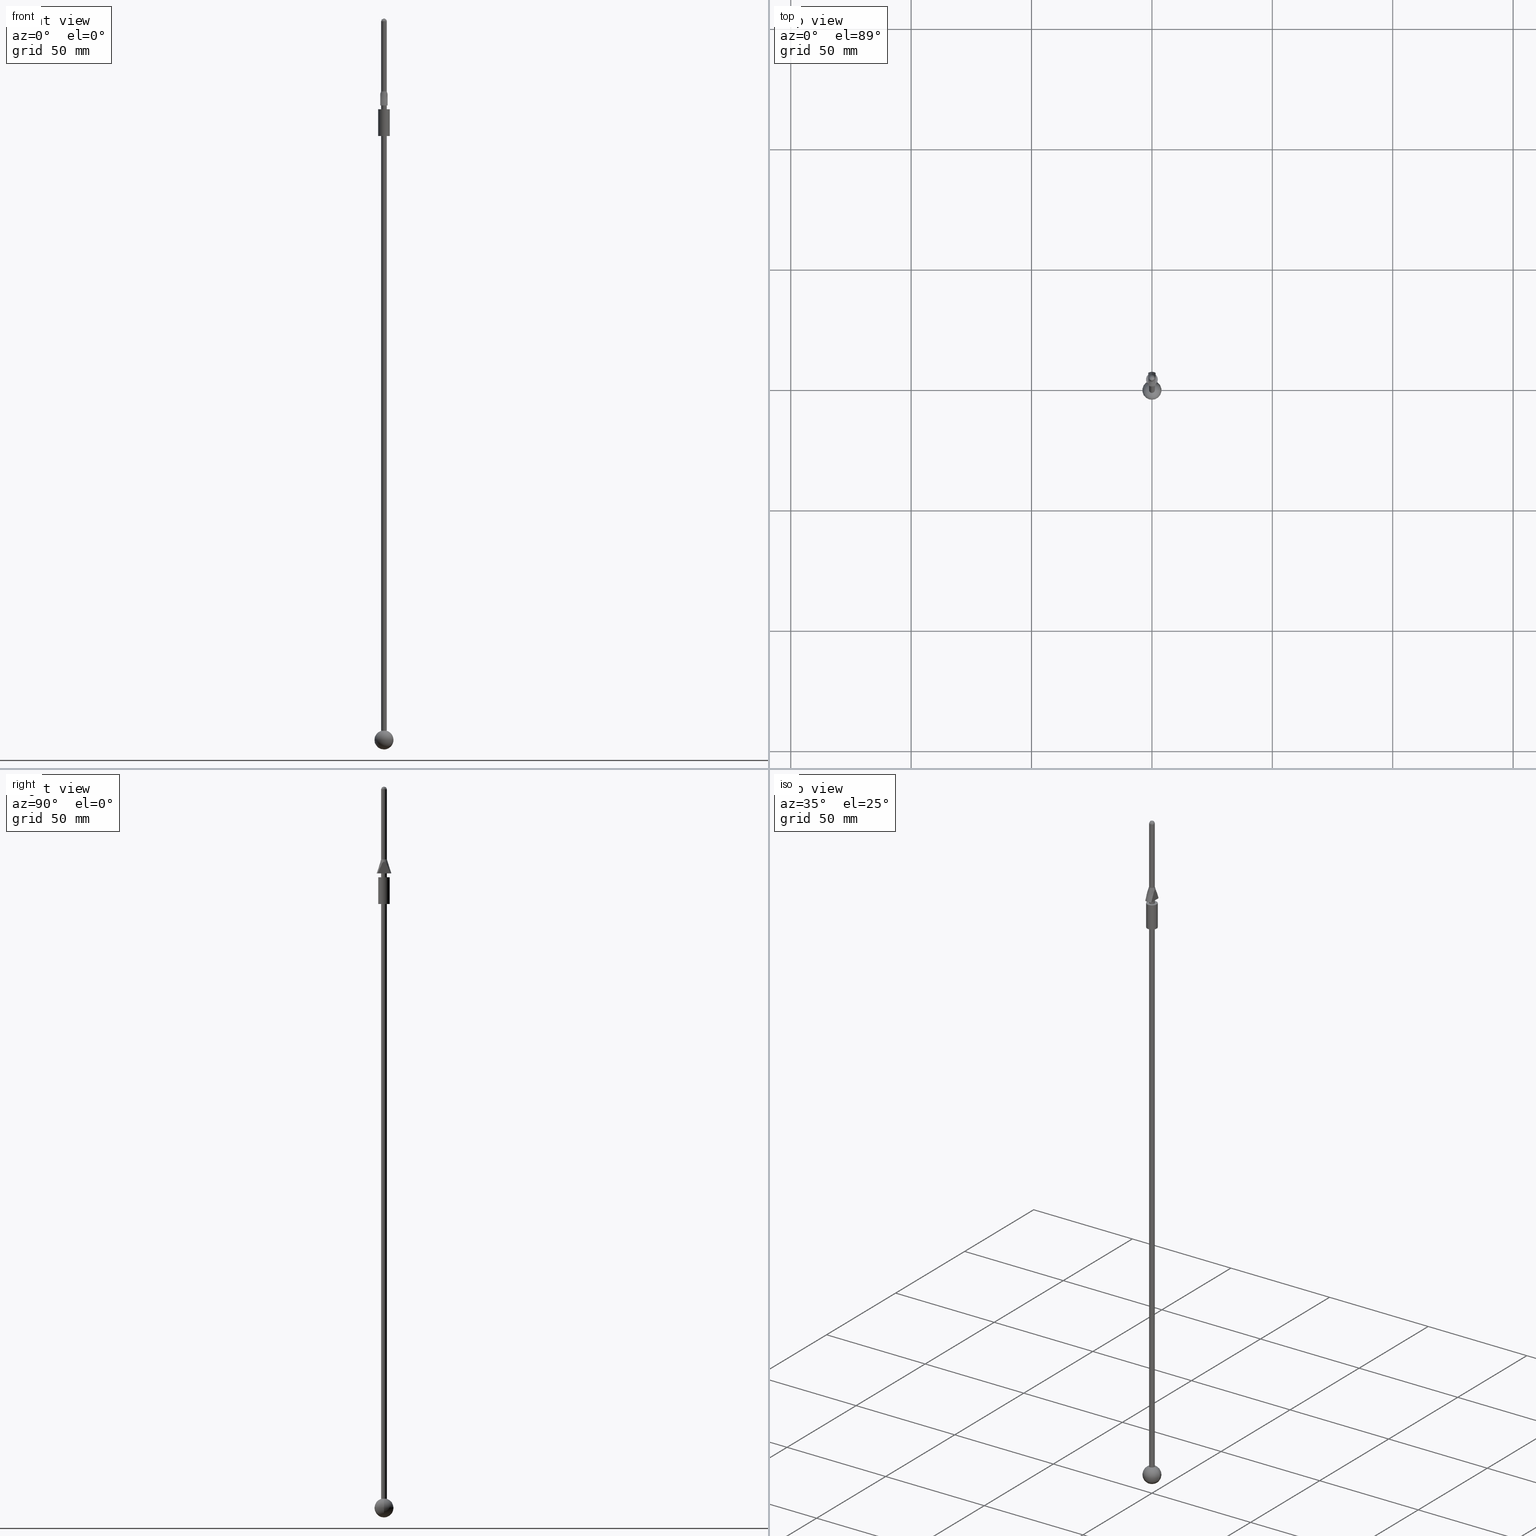
[diagram: canonical four-view strip — front | top / right | iso, engineering-drawing reading convention]
A machine part, canonical four-view strip (front | top / right | iso — engineering-drawing reading convention). The complete STEP part file that produces these views, byte-faithful:
ISO-10303-21;
HEADER;
/* Generated by software containing ST-Developer
 * from STEP Tools, Inc. (www.steptools.com) 
 */

FILE_DESCRIPTION(
/* description */ ('Polyurethane Lanyard'),
/* implementation_level */ '2;1');

FILE_NAME(
/* name */ 'G:\\engineer\\1-3D\\STEP\\V20207.stp',
/* time_stamp */ '2014-01-13T08:24:23-05:00',
/* author */ ('areid'),
/* organization */ (''),
/* preprocessor_version */ 'ST-DEVELOPER v15.2',
/* originating_system */ 'Autodesk Inventor 2014',
/* authorisation */ '');

FILE_SCHEMA (('AUTOMOTIVE_DESIGN { 1 0 10303 214 3 1 1 }'));
ENDSEC;

DATA;
#10=SHAPE_REPRESENTATION_RELATIONSHIP('SRR','None',#324,#11);
#11=ADVANCED_BREP_SHAPE_REPRESENTATION($,(#161),#312);
#12=STYLED_ITEM($,(#332),#161);
#13=SPHERICAL_SURFACE($,#185,0.15625);
#14=(
BOUNDED_SURFACE()
B_SPLINE_SURFACE(2,2,((#274,#275,#276,#277,#278,#279,#280,#281,#282),(#283,
#284,#285,#286,#287,#288,#289,#290,#291),(#292,#293,#294,#295,#296,#297,
#298,#299,#300)),.UNSPECIFIED.,.F.,.T.,.F.)
B_SPLINE_SURFACE_WITH_KNOTS((3,3),(3,2,2,2,3),(-1.5707963267949,0.),(-3.14159265358979,
-1.5707963267949,0.,1.5707963267949,3.14159265358979),.UNSPECIFIED.)
GEOMETRIC_REPRESENTATION_ITEM()
RATIONAL_B_SPLINE_SURFACE(((1.,0.707106781186548,1.,0.707106781186548,1.,
0.707106781186548,1.,0.707106781186548,1.),(0.707106781186547,0.5,0.707106781186547,
0.5,0.707106781186547,0.5,0.707106781186547,0.5,0.707106781186547),(1.,
0.707106781186548,1.,0.707106781186548,1.,0.707106781186548,1.,0.707106781186548,
1.)))
REPRESENTATION_ITEM($)
SURFACE()
);
#15=CYLINDRICAL_SURFACE($,#174,0.095);
#16=CYLINDRICAL_SURFACE($,#178,0.046875);
#17=CYLINDRICAL_SURFACE($,#180,0.046875);
#18=CYLINDRICAL_SURFACE($,#183,0.046875);
#19=FACE_BOUND($,#55,.T.);
#20=FACE_BOUND($,#57,.T.);
#21=FACE_BOUND($,#59,.T.);
#22=FACE_BOUND($,#61,.T.);
#23=FACE_BOUND($,#62,.T.);
#24=FACE_BOUND($,#63,.T.);
#25=FACE_BOUND($,#65,.T.);
#26=FACE_BOUND($,#67,.T.);
#27=FACE_BOUND($,#70,.T.);
#28=FACE_BOUND($,#72,.T.);
#29=CIRCLE($,#166,0.046875);
#30=CIRCLE($,#167,0.12);
#31=CIRCLE($,#168,0.12);
#32=CIRCLE($,#170,0.046875);
#33=CIRCLE($,#172,0.095);
#34=CIRCLE($,#173,0.046875);
#35=CIRCLE($,#175,0.095);
#36=CIRCLE($,#177,0.046875);
#37=CIRCLE($,#179,0.046875);
#38=CIRCLE($,#181,0.046875);
#39=CIRCLE($,#182,0.001875);
#40=CONICAL_SURFACE($,#165,0.0834375,17.6372704277704);
#41=FACE_OUTER_BOUND($,#52,.T.);
#42=FACE_OUTER_BOUND($,#53,.T.);
#43=FACE_OUTER_BOUND($,#54,.T.);
#44=FACE_OUTER_BOUND($,#56,.T.);
#45=FACE_OUTER_BOUND($,#58,.T.);
#46=FACE_OUTER_BOUND($,#60,.T.);
#47=FACE_OUTER_BOUND($,#64,.T.);
#48=FACE_OUTER_BOUND($,#66,.T.);
#49=FACE_OUTER_BOUND($,#68,.T.);
#50=FACE_OUTER_BOUND($,#69,.T.);
#51=FACE_OUTER_BOUND($,#71,.T.);
#52=EDGE_LOOP($,(#109,#110));
#53=EDGE_LOOP($,(#111,#112));
#54=EDGE_LOOP($,(#113));
#55=EDGE_LOOP($,(#114,#115,#116,#117));
#56=EDGE_LOOP($,(#118,#119,#120,#121));
#57=EDGE_LOOP($,(#122));
#58=EDGE_LOOP($,(#123));
#59=EDGE_LOOP($,(#124));
#60=EDGE_LOOP($,(#125));
#61=EDGE_LOOP($,(#126));
#62=EDGE_LOOP($,(#127));
#63=EDGE_LOOP($,(#128));
#64=EDGE_LOOP($,(#129));
#65=EDGE_LOOP($,(#130));
#66=EDGE_LOOP($,(#131));
#67=EDGE_LOOP($,(#132));
#68=EDGE_LOOP($,(#133,#134,#135,#136));
#69=EDGE_LOOP($,(#137));
#70=EDGE_LOOP($,(#138));
#71=EDGE_LOOP($,(#139));
#72=EDGE_LOOP($,(#140));
#73=LINE($,#243,#75);
#74=LINE($,#250,#76);
#75=VECTOR($,#190,0.207846096908265);
#76=VECTOR($,#193,0.207846096908265);
#77=(
BOUNDED_CURVE()
B_SPLINE_CURVE(2,(#240,#241,#242),.UNSPECIFIED.,.F.,.F.)
B_SPLINE_CURVE_WITH_KNOTS((3,3),(0.,1.09443603198774),.UNSPECIFIED.)
CURVE()
GEOMETRIC_REPRESENTATION_ITEM()
RATIONAL_B_SPLINE_CURVE((1.,2.00000000000001,1.))
REPRESENTATION_ITEM($)
);
#78=(
BOUNDED_CURVE()
B_SPLINE_CURVE(2,(#247,#248,#249),.UNSPECIFIED.,.F.,.F.)
B_SPLINE_CURVE_WITH_KNOTS((3,3),(0.,1.09443603198774),.UNSPECIFIED.)
CURVE()
GEOMETRIC_REPRESENTATION_ITEM()
RATIONAL_B_SPLINE_CURVE((1.,2.00000000000001,1.))
REPRESENTATION_ITEM($)
);
#79=(
BOUNDED_CURVE()
B_SPLINE_CURVE(2,(#304,#305,#306),.UNSPECIFIED.,.F.,.F.)
B_SPLINE_CURVE_WITH_KNOTS((3,3),(0.,1.5707963267949),.UNSPECIFIED.)
CURVE()
GEOMETRIC_REPRESENTATION_ITEM()
RATIONAL_B_SPLINE_CURVE((1.,0.707106781186547,1.))
REPRESENTATION_ITEM($)
);
#80=VERTEX_POINT($,#238);
#81=VERTEX_POINT($,#239);
#82=VERTEX_POINT($,#245);
#83=VERTEX_POINT($,#246);
#84=VERTEX_POINT($,#252);
#85=VERTEX_POINT($,#257);
#86=VERTEX_POINT($,#260);
#87=VERTEX_POINT($,#262);
#88=VERTEX_POINT($,#265);
#89=VERTEX_POINT($,#268);
#90=VERTEX_POINT($,#271);
#91=VERTEX_POINT($,#301);
#92=VERTEX_POINT($,#303);
#93=EDGE_CURVE($,#80,#81,#77,.T.);
#94=EDGE_CURVE($,#81,#80,#73,.T.);
#95=EDGE_CURVE($,#82,#83,#78,.T.);
#96=EDGE_CURVE($,#83,#82,#74,.T.);
#97=EDGE_CURVE($,#84,#84,#29,.T.);
#98=EDGE_CURVE($,#82,#81,#30,.T.);
#99=EDGE_CURVE($,#80,#83,#31,.T.);
#100=EDGE_CURVE($,#85,#85,#32,.T.);
#101=EDGE_CURVE($,#86,#86,#33,.T.);
#102=EDGE_CURVE($,#87,#87,#34,.T.);
#103=EDGE_CURVE($,#88,#88,#35,.T.);
#104=EDGE_CURVE($,#89,#89,#36,.T.);
#105=EDGE_CURVE($,#90,#90,#37,.T.);
#106=EDGE_CURVE($,#91,#91,#38,.T.);
#107=EDGE_CURVE($,#91,#92,#79,.T.);
#108=EDGE_CURVE($,#92,#92,#39,.T.);
#109=ORIENTED_EDGE($,*,*,#93,.F.);
#110=ORIENTED_EDGE($,*,*,#94,.F.);
#111=ORIENTED_EDGE($,*,*,#95,.F.);
#112=ORIENTED_EDGE($,*,*,#96,.F.);
#113=ORIENTED_EDGE($,*,*,#97,.F.);
#114=ORIENTED_EDGE($,*,*,#93,.T.);
#115=ORIENTED_EDGE($,*,*,#98,.F.);
#116=ORIENTED_EDGE($,*,*,#95,.T.);
#117=ORIENTED_EDGE($,*,*,#99,.F.);
#118=ORIENTED_EDGE($,*,*,#94,.T.);
#119=ORIENTED_EDGE($,*,*,#99,.T.);
#120=ORIENTED_EDGE($,*,*,#96,.T.);
#121=ORIENTED_EDGE($,*,*,#98,.T.);
#122=ORIENTED_EDGE($,*,*,#100,.F.);
#123=ORIENTED_EDGE($,*,*,#101,.F.);
#124=ORIENTED_EDGE($,*,*,#102,.F.);
#125=ORIENTED_EDGE($,*,*,#103,.F.);
#126=ORIENTED_EDGE($,*,*,#101,.T.);
#127=ORIENTED_EDGE($,*,*,#104,.F.);
#128=ORIENTED_EDGE($,*,*,#103,.T.);
#129=ORIENTED_EDGE($,*,*,#104,.T.);
#130=ORIENTED_EDGE($,*,*,#105,.T.);
#131=ORIENTED_EDGE($,*,*,#102,.T.);
#132=ORIENTED_EDGE($,*,*,#100,.T.);
#133=ORIENTED_EDGE($,*,*,#106,.T.);
#134=ORIENTED_EDGE($,*,*,#107,.T.);
#135=ORIENTED_EDGE($,*,*,#108,.T.);
#136=ORIENTED_EDGE($,*,*,#107,.F.);
#137=ORIENTED_EDGE($,*,*,#97,.T.);
#138=ORIENTED_EDGE($,*,*,#106,.F.);
#139=ORIENTED_EDGE($,*,*,#108,.F.);
#140=ORIENTED_EDGE($,*,*,#105,.F.);
#141=PLANE($,#163);
#142=PLANE($,#164);
#143=PLANE($,#169);
#144=PLANE($,#171);
#145=PLANE($,#176);
#146=PLANE($,#184);
#147=ADVANCED_FACE($,(#41),#141,.F.);
#148=ADVANCED_FACE($,(#42),#142,.F.);
#149=ADVANCED_FACE($,(#43,#19),#40,.T.);
#150=ADVANCED_FACE($,(#44,#20),#143,.T.);
#151=ADVANCED_FACE($,(#45,#21),#144,.T.);
#152=ADVANCED_FACE($,(#46,#22),#15,.T.);
#153=ADVANCED_FACE($,(#23,#24),#145,.T.);
#154=ADVANCED_FACE($,(#47,#25),#16,.T.);
#155=ADVANCED_FACE($,(#48,#26),#17,.T.);
#156=ADVANCED_FACE($,(#49),#14,.F.);
#157=ADVANCED_FACE($,(#50,#27),#18,.T.);
#158=ADVANCED_FACE($,(#51),#146,.F.);
#159=ADVANCED_FACE($,(#28),#13,.T.);
#160=CLOSED_SHELL($,(#147,#148,#149,#150,#151,#152,#153,#154,#155,#156,
#157,#158,#159));
#161=MANIFOLD_SOLID_BREP('Solid1',#160);
#162=AXIS2_PLACEMENT_3D('placement',#236,#186,#187);
#163=AXIS2_PLACEMENT_3D($,#237,#188,#189);
#164=AXIS2_PLACEMENT_3D($,#244,#191,#192);
#165=AXIS2_PLACEMENT_3D($,#251,#194,#195);
#166=AXIS2_PLACEMENT_3D($,#253,#196,#197);
#167=AXIS2_PLACEMENT_3D($,#254,#198,#199);
#168=AXIS2_PLACEMENT_3D($,#255,#200,#201);
#169=AXIS2_PLACEMENT_3D($,#256,#202,#203);
#170=AXIS2_PLACEMENT_3D($,#258,#204,#205);
#171=AXIS2_PLACEMENT_3D($,#259,#206,#207);
#172=AXIS2_PLACEMENT_3D($,#261,#208,#209);
#173=AXIS2_PLACEMENT_3D($,#263,#210,#211);
#174=AXIS2_PLACEMENT_3D($,#264,#212,#213);
#175=AXIS2_PLACEMENT_3D($,#266,#214,#215);
#176=AXIS2_PLACEMENT_3D($,#267,#216,#217);
#177=AXIS2_PLACEMENT_3D($,#269,#218,#219);
#178=AXIS2_PLACEMENT_3D($,#270,#220,#221);
#179=AXIS2_PLACEMENT_3D($,#272,#222,#223);
#180=AXIS2_PLACEMENT_3D($,#273,#224,#225);
#181=AXIS2_PLACEMENT_3D($,#302,#226,#227);
#182=AXIS2_PLACEMENT_3D($,#307,#228,#229);
#183=AXIS2_PLACEMENT_3D($,#308,#230,#231);
#184=AXIS2_PLACEMENT_3D($,#309,#232,#233);
#185=AXIS2_PLACEMENT_3D($,#310,#234,#235);
#186=DIRECTION('axis',(0.,0.,1.));
#187=DIRECTION('refdir',(1.,0.,0.));
#188=DIRECTION('center_axis',(1.,0.,4.75103998898133E-017));
#189=DIRECTION('ref_axis',(5.28743715477731E-017,0.,-1.));
#190=DIRECTION($,(0.,1.,0.));
#191=DIRECTION('center_axis',(-1.,0.,0.));
#192=DIRECTION('ref_axis',(0.,0.,1.));
#193=DIRECTION($,(0.,-1.,0.));
#194=DIRECTION('center_axis',(0.,0.,-1.));
#195=DIRECTION('ref_axis',(0.,1.,0.));
#196=DIRECTION('center_axis',(0.,0.,1.));
#197=DIRECTION('ref_axis',(-1.,0.,0.));
#198=DIRECTION('center_axis',(0.,0.,-1.));
#199=DIRECTION('ref_axis',(0.,1.,0.));
#200=DIRECTION('center_axis',(0.,0.,-1.));
#201=DIRECTION('ref_axis',(0.,1.,0.));
#202=DIRECTION('center_axis',(0.,0.,-1.));
#203=DIRECTION('ref_axis',(-1.,0.,0.));
#204=DIRECTION('center_axis',(0.,0.,-1.));
#205=DIRECTION('ref_axis',(-1.,0.,0.));
#206=DIRECTION('center_axis',(0.,0.,1.));
#207=DIRECTION('ref_axis',(1.,0.,0.));
#208=DIRECTION('center_axis',(0.,0.,-1.));
#209=DIRECTION('ref_axis',(0.,1.,0.));
#210=DIRECTION('center_axis',(0.,0.,1.));
#211=DIRECTION('ref_axis',(-1.,0.,0.));
#212=DIRECTION('center_axis',(0.,0.,-1.));
#213=DIRECTION('ref_axis',(0.,1.,0.));
#214=DIRECTION('center_axis',(0.,0.,-1.));
#215=DIRECTION('ref_axis',(0.,1.,0.));
#216=DIRECTION('center_axis',(0.,0.,-1.));
#217=DIRECTION('ref_axis',(-1.,0.,0.));
#218=DIRECTION('center_axis',(0.,0.,-1.));
#219=DIRECTION('ref_axis',(-1.,0.,0.));
#220=DIRECTION('center_axis',(0.,0.,1.));
#221=DIRECTION('ref_axis',(-1.,0.,0.));
#222=DIRECTION('center_axis',(0.,0.,1.));
#223=DIRECTION('ref_axis',(-1.,0.,0.));
#224=DIRECTION('center_axis',(0.,0.,1.));
#225=DIRECTION('ref_axis',(-1.,0.,0.));
#226=DIRECTION('center_axis',(0.,0.,1.));
#227=DIRECTION('ref_axis',(-1.,0.,0.));
#228=DIRECTION('center_axis',(0.,0.,-1.));
#229=DIRECTION('ref_axis',(-1.,0.,0.));
#230=DIRECTION('center_axis',(0.,0.,1.));
#231=DIRECTION('ref_axis',(-1.,0.,0.));
#232=DIRECTION('center_axis',(0.,0.,-1.));
#233=DIRECTION('ref_axis',(-1.,0.,0.));
#234=DIRECTION('center_axis',(6.12323399573676E-017,0.,1.));
#235=DIRECTION('ref_axis',(1.,0.,0.));
#236=CARTESIAN_POINT('',(0.,0.,0.));
#237=CARTESIAN_POINT('Origin',(-0.06,0.,4.7075));
#238=CARTESIAN_POINT('',(-0.06,0.103923048454132,4.4775));
#239=CARTESIAN_POINT('',(-0.06,-0.103923048454132,4.4775));
#240=CARTESIAN_POINT('Ctrl Pts',(-0.06,0.103923048454132,4.4775));
#241=CARTESIAN_POINT('Ctrl Pts',(-0.06,0.,4.76057692307692));
#242=CARTESIAN_POINT('Ctrl Pts',(-0.06,-0.103923048454132,4.4775));
#243=CARTESIAN_POINT($,(-0.06,0.04171875,4.4775));
#244=CARTESIAN_POINT('Origin',(0.06,0.,4.4775));
#245=CARTESIAN_POINT('',(0.06,-0.103923048454132,4.4775));
#246=CARTESIAN_POINT('',(0.06,0.103923048454132,4.4775));
#247=CARTESIAN_POINT('Ctrl Pts',(0.06,-0.103923048454132,4.4775));
#248=CARTESIAN_POINT('Ctrl Pts',(0.06,0.,4.76057692307692));
#249=CARTESIAN_POINT('Ctrl Pts',(0.06,0.103923048454132,4.4775));
#250=CARTESIAN_POINT($,(0.06,0.04171875,4.4775));
#251=CARTESIAN_POINT('Origin',(0.,0.,4.5925));
#252=CARTESIAN_POINT('',(0.,0.046875,4.7075));
#253=CARTESIAN_POINT('Origin',(0.,0.,4.7075));
#254=CARTESIAN_POINT('Origin',(0.,0.,4.4775));
#255=CARTESIAN_POINT('Origin',(0.,0.,4.4775));
#256=CARTESIAN_POINT('Origin',(0.,0.0834375,4.4775));
#257=CARTESIAN_POINT('',(0.,0.046875,4.4775));
#258=CARTESIAN_POINT('Origin',(0.,0.,4.4775));
#259=CARTESIAN_POINT('Origin',(0.,0.0709375,4.415));
#260=CARTESIAN_POINT('',(0.,0.095,4.415));
#261=CARTESIAN_POINT('Origin',(0.,0.,4.415));
#262=CARTESIAN_POINT('',(0.,0.046875,4.415));
#263=CARTESIAN_POINT('Origin',(0.,0.,4.415));
#264=CARTESIAN_POINT('Origin',(0.,0.,4.19625));
#265=CARTESIAN_POINT('',(0.,0.095,3.9775));
#266=CARTESIAN_POINT('Origin',(0.,0.,3.9775));
#267=CARTESIAN_POINT('Origin',(0.,0.0709375000000001,3.9775));
#268=CARTESIAN_POINT('',(0.,0.0468750000000001,3.9775));
#269=CARTESIAN_POINT('Origin',(0.,0.,3.9775));
#270=CARTESIAN_POINT('Origin',(0.,0.,0.));
#271=CARTESIAN_POINT('',(0.046875,5.74053187100322E-018,-5.7484469997786));
#272=CARTESIAN_POINT('Origin',(0.,0.,-5.7484469997786));
#273=CARTESIAN_POINT('Origin',(0.,0.,0.));
#274=CARTESIAN_POINT('Ctrl Pts',(0.001875,0.,5.8975));
#275=CARTESIAN_POINT('Ctrl Pts',(0.001875,-0.001875,5.8975));
#276=CARTESIAN_POINT('Ctrl Pts',(0.,-0.001875,5.8975));
#277=CARTESIAN_POINT('Ctrl Pts',(-0.001875,-0.001875,5.8975));
#278=CARTESIAN_POINT('Ctrl Pts',(-0.001875,0.,5.8975));
#279=CARTESIAN_POINT('Ctrl Pts',(-0.001875,0.001875,5.8975));
#280=CARTESIAN_POINT('Ctrl Pts',(0.,0.001875,5.8975));
#281=CARTESIAN_POINT('Ctrl Pts',(0.001875,0.001875,5.8975));
#282=CARTESIAN_POINT('Ctrl Pts',(0.001875,0.,5.8975));
#283=CARTESIAN_POINT('Ctrl Pts',(0.046875,0.,5.8975));
#284=CARTESIAN_POINT('Ctrl Pts',(0.046875,-0.046875,5.8975));
#285=CARTESIAN_POINT('Ctrl Pts',(0.,-0.046875,5.8975));
#286=CARTESIAN_POINT('Ctrl Pts',(-0.046875,-0.046875,5.8975));
#287=CARTESIAN_POINT('Ctrl Pts',(-0.046875,0.,5.8975));
#288=CARTESIAN_POINT('Ctrl Pts',(-0.046875,0.046875,5.8975));
#289=CARTESIAN_POINT('Ctrl Pts',(0.,0.046875,5.8975));
#290=CARTESIAN_POINT('Ctrl Pts',(0.046875,0.046875,5.8975));
#291=CARTESIAN_POINT('Ctrl Pts',(0.046875,0.,5.8975));
#292=CARTESIAN_POINT('Ctrl Pts',(0.046875,0.,5.8525));
#293=CARTESIAN_POINT('Ctrl Pts',(0.046875,-0.046875,5.8525));
#294=CARTESIAN_POINT('Ctrl Pts',(0.,-0.046875,5.8525));
#295=CARTESIAN_POINT('Ctrl Pts',(-0.046875,-0.046875,5.8525));
#296=CARTESIAN_POINT('Ctrl Pts',(-0.046875,0.,5.8525));
#297=CARTESIAN_POINT('Ctrl Pts',(-0.046875,0.046875,5.8525));
#298=CARTESIAN_POINT('Ctrl Pts',(0.,0.046875,5.8525));
#299=CARTESIAN_POINT('Ctrl Pts',(0.046875,0.046875,5.8525));
#300=CARTESIAN_POINT('Ctrl Pts',(0.046875,0.,5.8525));
#301=CARTESIAN_POINT('',(0.046875,5.74053187100322E-018,5.8525));
#302=CARTESIAN_POINT('Origin',(0.,0.,5.8525));
#303=CARTESIAN_POINT('',(0.001875,-2.29621274840129E-019,5.8975));
#304=CARTESIAN_POINT('Ctrl Pts',(0.046875,0.,5.8525));
#305=CARTESIAN_POINT('Ctrl Pts',(0.046875,0.,5.8975));
#306=CARTESIAN_POINT('Ctrl Pts',(0.001875,0.,5.8975));
#307=CARTESIAN_POINT('Origin',(0.,0.,5.8975));
#308=CARTESIAN_POINT('Origin',(0.,0.,0.));
#309=CARTESIAN_POINT('Origin',(0.,0.,5.8975));
#310=CARTESIAN_POINT('Origin',(0.,0.,-5.8975));
#311=UNCERTAINTY_MEASURE_WITH_UNIT(LENGTH_MEASURE(0.000393700787401575),
#313,'DISTANCE_ACCURACY_VALUE',
'Maximum model space distance between geometric entities at asserted c
onnectivities');
#312=(
GEOMETRIC_REPRESENTATION_CONTEXT(3)
GLOBAL_UNCERTAINTY_ASSIGNED_CONTEXT((#311))
GLOBAL_UNIT_ASSIGNED_CONTEXT((#313,#319,#316))
REPRESENTATION_CONTEXT('','3D')
);
#313=(
CONVERSION_BASED_UNIT('__CONSTANT UNIT inch',#315)
LENGTH_UNIT()
NAMED_UNIT(#318)
);
#314=(
LENGTH_UNIT()
NAMED_UNIT(*)
SI_UNIT(.MILLI.,.METRE.)
);
#315=LENGTH_MEASURE_WITH_UNIT(LENGTH_MEASURE(25.4),#314);
#316=(
NAMED_UNIT(*)
SI_UNIT($,.STERADIAN.)
SOLID_ANGLE_UNIT()
);
#317=DIMENSIONAL_EXPONENTS(0.,0.,0.,0.,0.,0.,0.);
#318=DIMENSIONAL_EXPONENTS(1.,0.,0.,0.,0.,0.,0.);
#319=(
CONVERSION_BASED_UNIT('degree',#321)
NAMED_UNIT(#317)
PLANE_ANGLE_UNIT()
);
#320=(
NAMED_UNIT(*)
PLANE_ANGLE_UNIT()
SI_UNIT($,.RADIAN.)
);
#321=PLANE_ANGLE_MEASURE_WITH_UNIT(PLANE_ANGLE_MEASURE(0.01745329252),#320);
#322=SHAPE_DEFINITION_REPRESENTATION(#323,#324);
#323=PRODUCT_DEFINITION_SHAPE('',$,#326);
#324=SHAPE_REPRESENTATION('',(#162),#312);
#325=PRODUCT_DEFINITION_CONTEXT('3D Mechanical Parts',#329,'design');
#326=PRODUCT_DEFINITION('V20207','V20207',#327,#325);
#327=PRODUCT_DEFINITION_FORMATION('',$,#331);
#328=APPLICATION_PROTOCOL_DEFINITION('international standard',
'automotive_design',2009,#329);
#329=APPLICATION_CONTEXT(
'Core Data for Automotive Mechanical Design Process');
#330=PRODUCT_CONTEXT('3D Mechanical Parts',#329,'mechanical');
#331=PRODUCT('V20207','V20207',$,(#330));
#332=PRESENTATION_STYLE_ASSIGNMENT((#333));
#333=SURFACE_STYLE_USAGE(.BOTH.,#334);
#334=SURFACE_SIDE_STYLE($,(#335));
#335=SURFACE_STYLE_FILL_AREA(#336);
#336=FILL_AREA_STYLE($,(#337));
#337=FILL_AREA_STYLE_COLOUR($,#338);
#338=COLOUR_RGB('',0.250980392156863,0.250980392156863,0.250980392156863);
ENDSEC;
END-ISO-10303-21;
